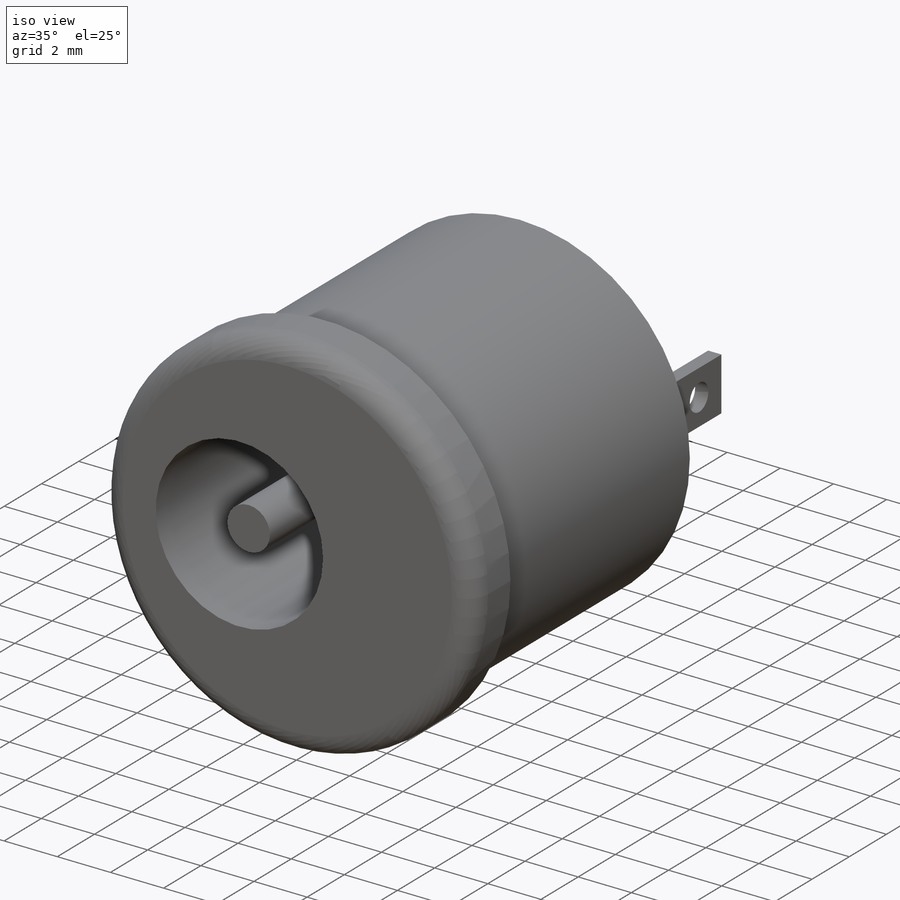
[diagram: iso view]
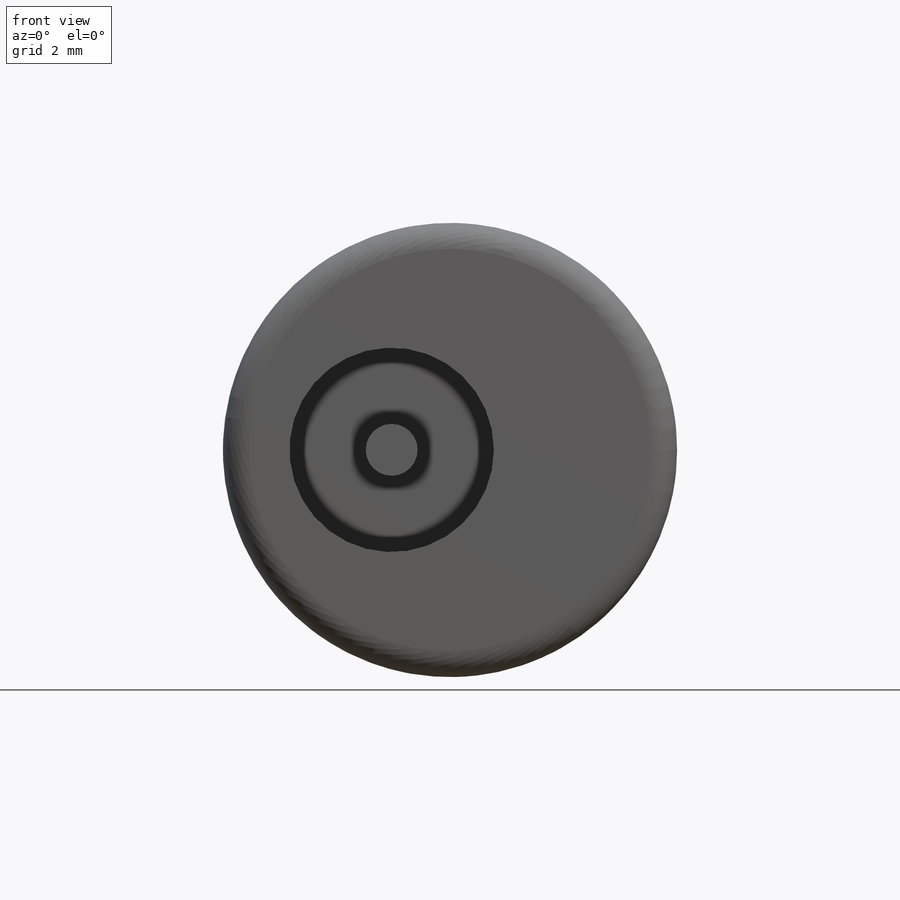
[diagram: front view]
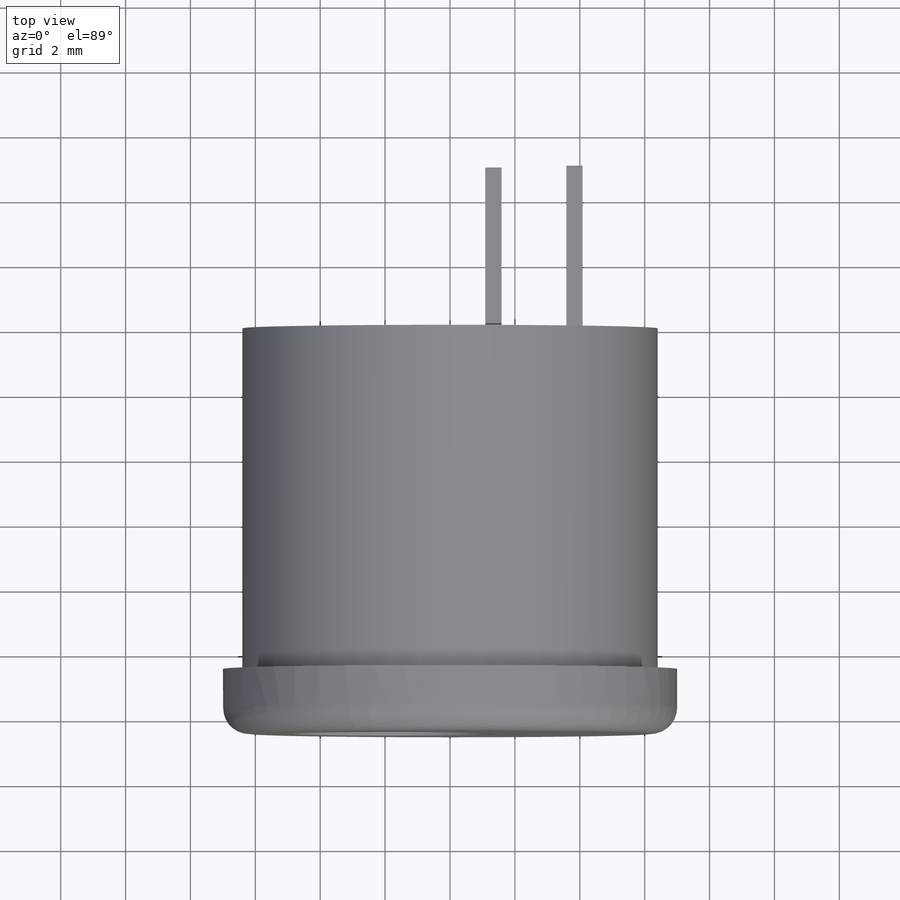
[diagram: top view]
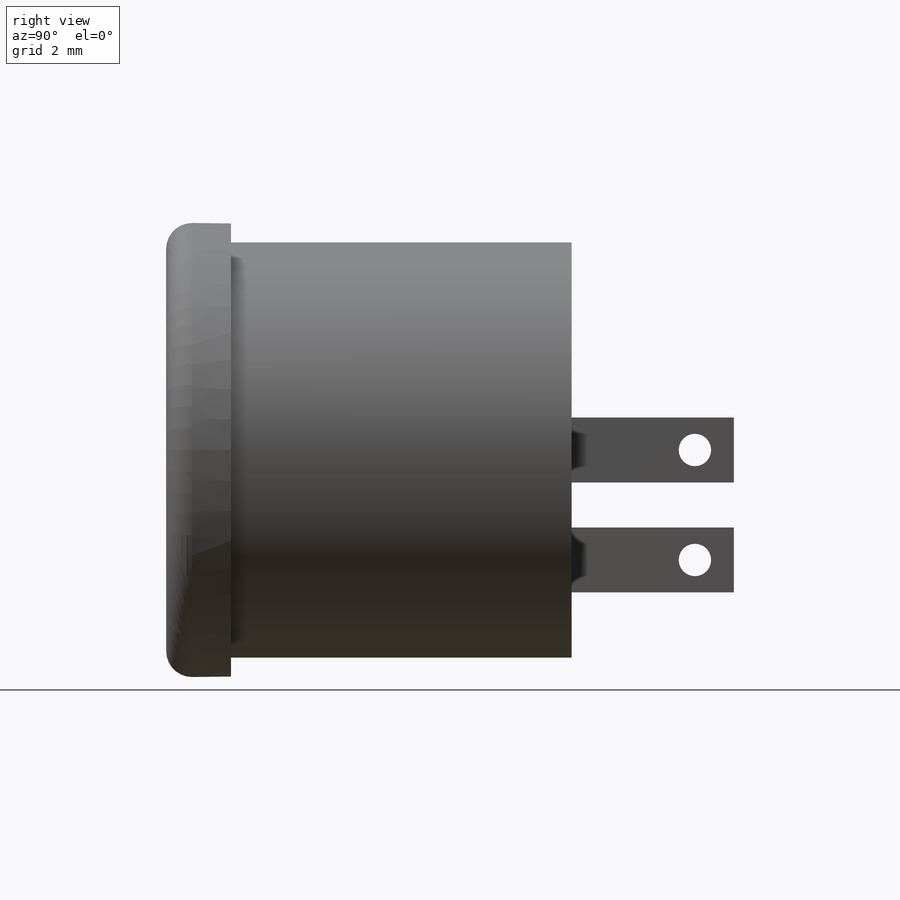
[diagram: right view]
SOLIDWORKS PART (.sldprt)
format: sldprt  version: not decoded by parser v0  size: 248,832 bytes
history: native  units: mm
features: sketch x7, cut_extrude x4, plane x3, extrude x3, material x1, fillet x1 (+8 scaffold rows collapsed)
feature tree (27):
  scaffold x8  (default folders/planes/origin — collapsed)
  material  "Material <not specified>"
  plane  "Plan de face"
  plane  "Plan de dessus"
  plane  "Plan de droite"
  sketch  "Esquisse1"  dims[D1=~14.52409mm]
  extrude  "Boss.-Extru.1"  Depth=12.5mm
  sketch  "Esquisse2"  dims[D1=12.8mm]
  cut_extrude  "Enlèv. mat.-Extru.1"  Depth=10.5mm
  sketch  "Esquisse4"  dims[D1=1.8mm]
  cut_extrude  "Enlèv. mat.-Extru.3"  Depth=9mm
  sketch  "Esquisse5"  dims[D1=~0.669822mm]
  extrude  "Boss.-Extru.2"  Depth=8.5mm
  sketch  "Esquisse6"  dims[D1=~3.83744mm D2=2.0mm D3=0.5mm D4=2.0mm D5=0.5mm]
  extrude  "Boss.-Extru.3"  Depth=5mm
  sketch  "Esquisse7"  dims[c1.D2=~0.485875mm c1.D1=1.0mm c2.D2=1.2mm c2.D3=1.2mm c2.D4=1.0mm]
  cut_extrude  "Enlèv. mat.-Extru.4"  [1 undecoded]
  sketch  "Esquisse8"  dims[D1=1.2mm D2=1.0mm]
  cut_extrude  "Enlèv. mat.-Extru.5"  [1 undecoded]
  fillet  "Congé7"  Radius=0.8mm
decode coverage: 13 of 15 modeling features carry decoded parameters
note: ~ marks probable driven/reference dimensions
note: 2 parameter values undecoded
note: suppression state not decoded; provenance and decode notes live in map.json
